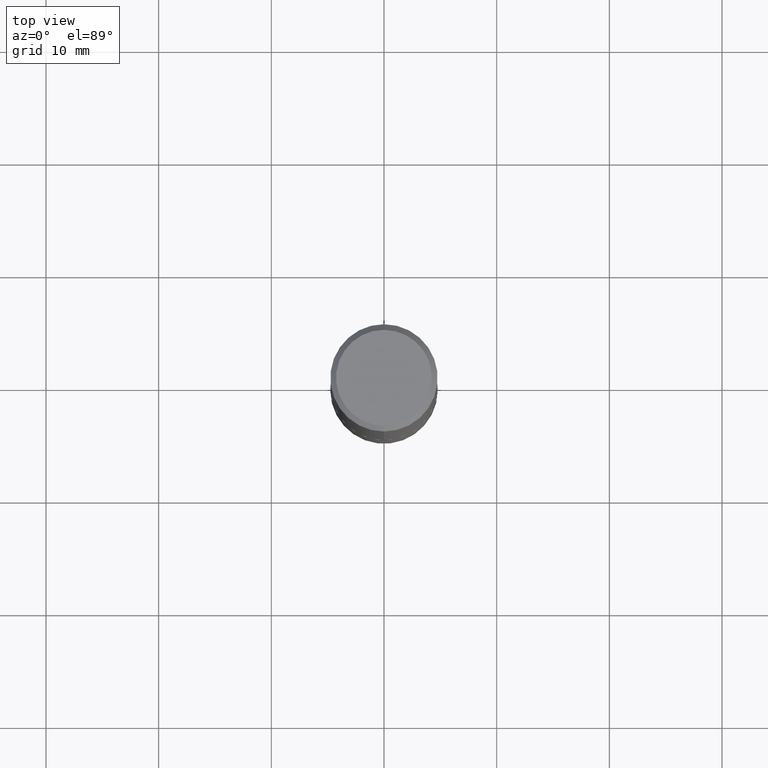
[diagram: clean part render]
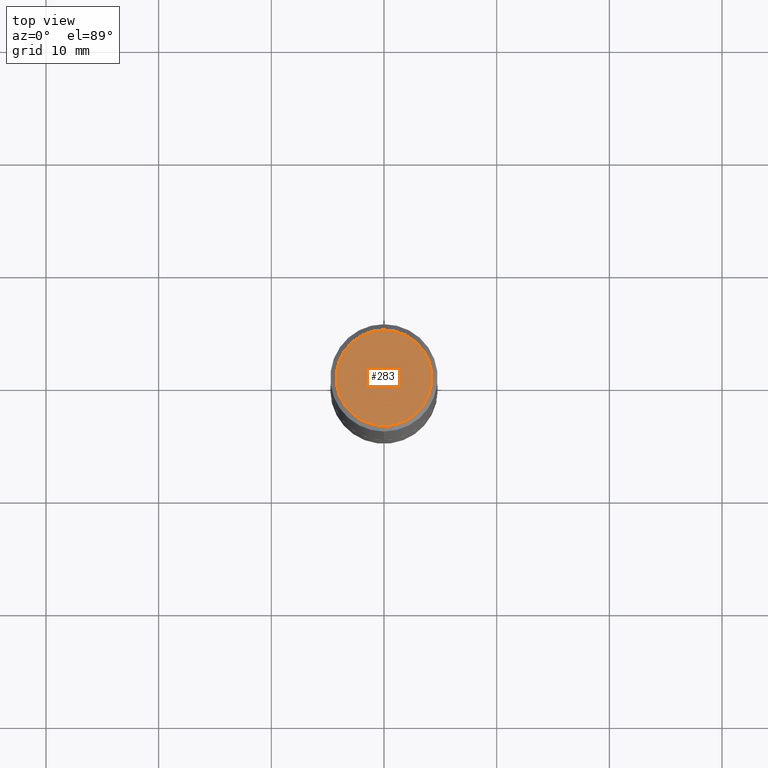
[diagram: same view with one face highlighted and labeled with its STEP entity id]
A machine part, top view. The second image highlights one B-rep face of the part: STEP entity #283.
In plain terms, the highlighted planar face has unit normal (0, -0, -1).
Its self-contained STEP definition (entity closure, byte-faithful):
#2 = EDGE_CURVE ( 'NONE', #291, #316, #162, .T. ) ;
#15 = CARTESIAN_POINT ( 'NONE',  ( -1.779621666799247049E-45, 2.542884271553755101E-31, 7.280161000879371670E-17 ) ) ;
#37 = DIRECTION ( 'NONE',  ( -6.982962677686266711E-15, -1.000000000000000000, 3.492895653333215805E-15 ) ) ;
#53 = FACE_OUTER_BOUND ( 'NONE', #256, .T. ) ;
#68 = EDGE_CURVE ( 'NONE', #316, #291, #126, .T. ) ;
#126 = CIRCLE ( 'NONE', #277, 0.1674999999999999545 ) ;
#131 = CARTESIAN_POINT ( 'NONE',  ( -1.217738394604446442E-15, -0.1674999999999999545, 6.578616319421072206E-16 ) ) ;
#132 = CARTESIAN_POINT ( 'NONE',  ( -1.779621666799247049E-45, 2.542884271553755101E-31, 7.280161000879371670E-17 ) ) ;
#162 = CIRCLE ( 'NONE', #379, 0.1674999999999999545 ) ;
#209 = ORIENTED_EDGE ( 'NONE', *, *, #68, .T. ) ;
#231 = AXIS2_PLACEMENT_3D ( 'NONE', #399, #363, #389 ) ;
#249 = CARTESIAN_POINT ( 'NONE',  ( 1.239475875289312499E-15, 0.1674999999999999545, -5.122584119245197133E-16 ) ) ;
#256 = EDGE_LOOP ( 'NONE', ( #325, #209 ) ) ;
#277 = AXIS2_PLACEMENT_3D ( 'NONE', #15, #369, #37 ) ;
#283 = ADVANCED_FACE ( 'NONE', ( #53 ), #412, .F. ) ;
#291 = VERTEX_POINT ( 'NONE', #249 ) ;
#316 = VERTEX_POINT ( 'NONE', #131 ) ;
#325 = ORIENTED_EDGE ( 'NONE', *, *, #2, .T. ) ;
#337 = DIRECTION ( 'NONE',  ( -6.982962677686266711E-15, -1.000000000000000000, 3.492895653333215805E-15 ) ) ;
#363 = DIRECTION ( 'NONE',  ( 2.444481195655269307E-29, -3.492895653333215411E-15, -1.000000000000000000 ) ) ;
#369 = DIRECTION ( 'NONE',  ( -2.444481195655269587E-29, 3.492895653333215411E-15, 1.000000000000000000 ) ) ;
#379 = AXIS2_PLACEMENT_3D ( 'NONE', #132, #393, #337 ) ;
#389 = DIRECTION ( 'NONE',  ( 6.982962677686265922E-15, 1.000000000000000000, -3.492895653333215411E-15 ) ) ;
#393 = DIRECTION ( 'NONE',  ( -2.444481195655269587E-29, 3.492895653333215411E-15, 1.000000000000000000 ) ) ;
#399 = CARTESIAN_POINT ( 'NONE',  ( 1.169646248512449398E-15, 0.1674999999999999545, -5.486592169289166394E-16 ) ) ;
#412 = PLANE ( 'NONE',  #231 ) ;